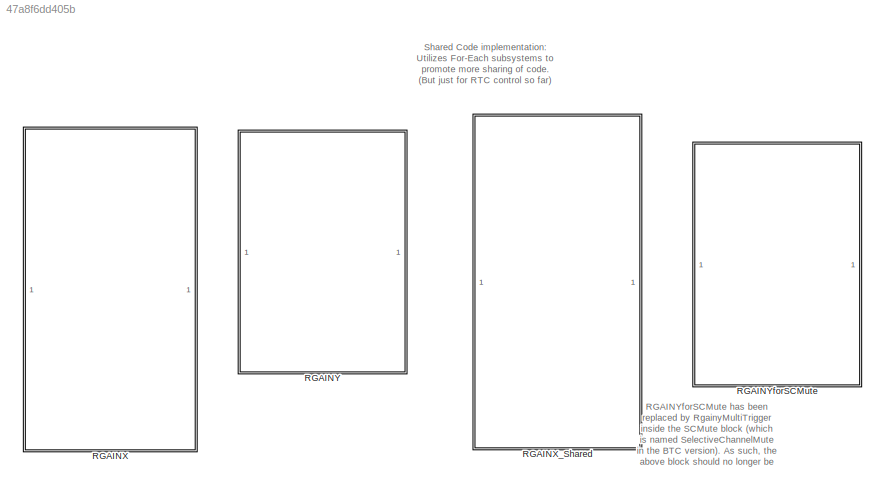
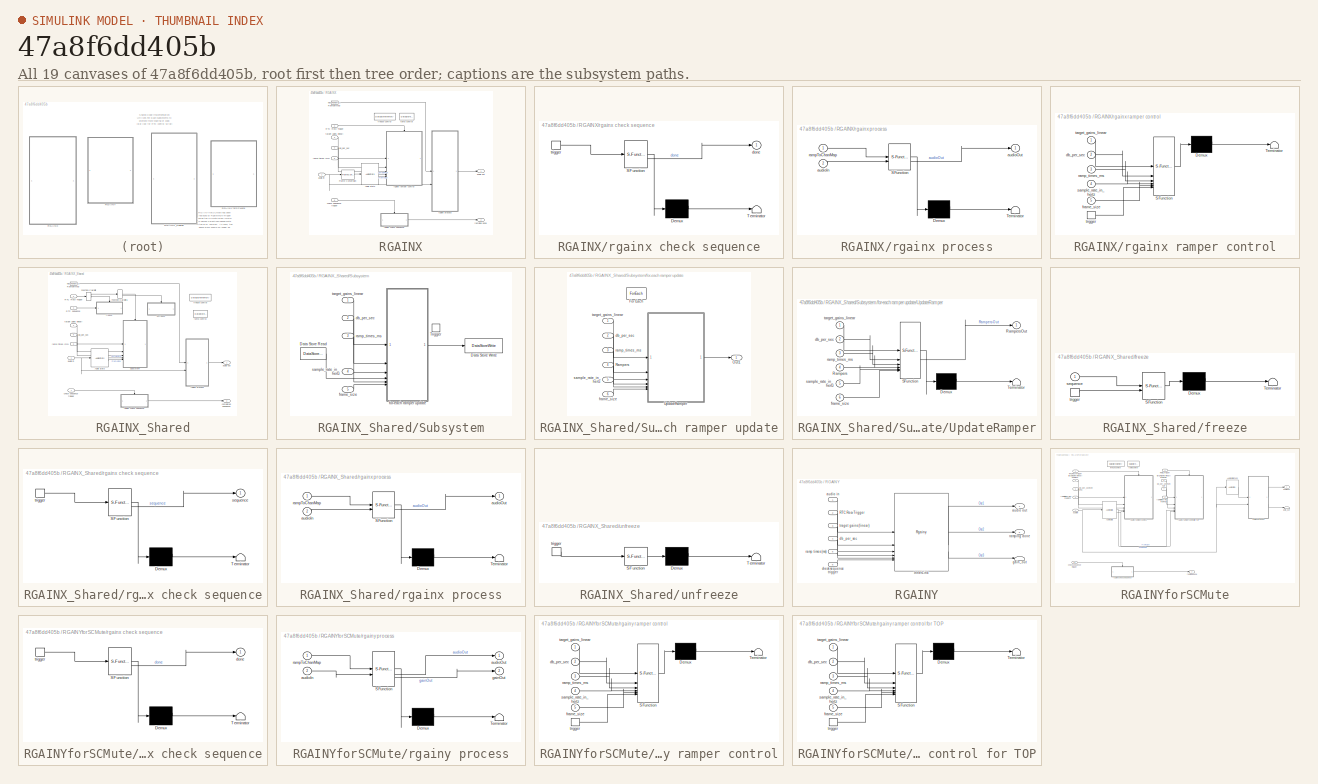
[diagram: thumbnail index - all 19 canvases of the model, root first then tree order]
MODEL slx_47a8f6dd405b
KIND library
CONFIG AbsTol = auto
CONFIG EnableMultiTasking = off
CONFIG FixedStep = auto
CONFIG MaxStep = auto
CONFIG MinStep = auto
CONFIG RelTol = 1e-3
CONFIG SampleTimeConstraint = Unconstrained
CONFIG SolverName = VariableStepAuto
CONFIG StartTime = 0.0
CONFIG StopTime = 10.0
BLOCK [SubSystem] RGAINX
  Commented = on
  InitFcn = GainLibrary_data
BLOCK [Reference] RGAINX/Audio Stats  REF=AudioStats/AudioStats
  SourceBlock = AudioStats/AudioStats
  SourceProductName = Bose Talaria
  SourceType = Talaria Audio Statistics
BLOCK [FrameConversion] RGAINX/Frame Conversion
  OutFrame = Sample-based
BLOCK [Inport] RGAINX/RTC Recv Trigger
  Port = 2
BLOCK [Constant] RGAINX/RamperMap
  Value = MaskRamperMap
BLOCK [Inport] RGAINX/audio in
BLOCK [Outport] RGAINX/audio out
  VectorParamsAs1DForOutWhenUnconnected = off
BLOCK [Inport] RGAINX/check sequence trigger
  Port = 6
BLOCK [Inport] RGAINX/db_per_sec
  Port = 4
BLOCK [DataStoreMemory] RGAINX/freeze control
  DataStoreName = Freeze
  InitialValue = [0,0]
  OutDataTypeStr = uint32
  ShowAdditionalParam = off
  SignalType = real
BLOCK [DataStoreMemory] RGAINX/ramp control
  DataStoreName = Rampers
  InitialValue = MASK_RAMPER_INIT
  OutDataTypeStr = Bus: rgain_bus
  ShowAdditionalParam = off
  SignalType = real
BLOCK [Inport] RGAINX/ramp times (ms)
  Port = 5
BLOCK [Outport] RGAINX/ramping done
  Port = 2
  VectorParamsAs1DForOutWhenUnconnected = off
BLOCK [SubSystem] RGAINX/rgainx check sequence
  ErrorFcn = Stateflow.Translate.translate
  PermitHierarchicalResolution = ExplicitOnly
  SFBlockType = MATLAB Function
  TreatAsAtomicUnit = on
BLOCK [Demux] RGAINX/rgainx check sequence/ Demux 
  Outputs = 1
BLOCK [S-Function] RGAINX/rgainx check sequence/ SFunction 
  EnableBusSupport = off
  FunctionName = sf_sfun
  Parameters = MaskNumRampers
  PortCounts = [1 2]
  SFcnIsStateOwnerBlock = off
  SFunctionDeploymentMode = off
  Tag = Stateflow S-Function 6
BLOCK [Terminator] RGAINX/rgainx check sequence/ Terminator 
BLOCK [Outport] RGAINX/rgainx check sequence/done
  VectorParamsAs1DForOutWhenUnconnected = off
BLOCK [TriggerPort] RGAINX/rgainx check sequence/trigger
  ShowOutputPort = on
  StatesWhenEnabling = held
  TriggerType = function-call
  VariantControl = Variant
BLOCK [SubSystem] RGAINX/rgainx process
  ErrorFcn = Stateflow.Translate.translate
  PermitHierarchicalResolution = ExplicitOnly
  RTWSystemCode = Reusable function
  SFBlockType = MATLAB Function
  TreatAsAtomicUnit = on
BLOCK [Demux] RGAINX/rgainx process/ Demux 
  Outputs = 1
BLOCK [S-Function] RGAINX/rgainx process/ SFunction 
  EnableBusSupport = off
  FunctionName = sf_sfun
  Parameters = MaskNumChannels,MaskNumRampers
  PortCounts = [2 2]
  SFcnIsStateOwnerBlock = off
  SFunctionDeploymentMode = off
  Tag = Stateflow S-Function 7
BLOCK [Terminator] RGAINX/rgainx process/ Terminator 
BLOCK [Inport] RGAINX/rgainx process/audioIn
  Port = 2
BLOCK [Outport] RGAINX/rgainx process/audioOut
  VectorParamsAs1DForOutWhenUnconnected = off
BLOCK [Inport] RGAINX/rgainx process/rampToChanMap
BLOCK [SubSystem] RGAINX/rgainx ramper control
  ErrorFcn = Stateflow.Translate.translate
  PermitHierarchicalResolution = ExplicitOnly
  RTWSystemCode = Reusable function
  SFBlockType = MATLAB Function
  TreatAsAtomicUnit = on
BLOCK [Demux] RGAINX/rgainx ramper control/ Demux 
  Outputs = 1
BLOCK [S-Function] RGAINX/rgainx ramper control/ SFunction 
  EnableBusSupport = off
  FunctionName = sf_sfun
  Parameters = MaskNumRampers,rgain_SILENT_GAIN
  PortCounts = [6 1]
  SFcnIsStateOwnerBlock = off
  SFunctionDeploymentMode = off
  Tag = Stateflow S-Function 9
BLOCK [Terminator] RGAINX/rgainx ramper control/ Terminator 
BLOCK [Inport] RGAINX/rgainx ramper control/db_per_sec
  Port = 2
BLOCK [Inport] RGAINX/rgainx ramper control/frame_size
  Port = 5
BLOCK [Inport] RGAINX/rgainx ramper control/ramp_times_ms
  Port = 3
BLOCK [Inport] RGAINX/rgainx ramper control/sample_rate_in_hertz
  Port = 4
BLOCK [Inport] RGAINX/rgainx ramper control/target_gains_linear
BLOCK [TriggerPort] RGAINX/rgainx ramper control/trigger
  ShowOutputPort = on
  StatesWhenEnabling = held
  TriggerType = function-call
  VariantControl = Variant
BLOCK [Inport] RGAINX/target gains (linear)
  Port = 3
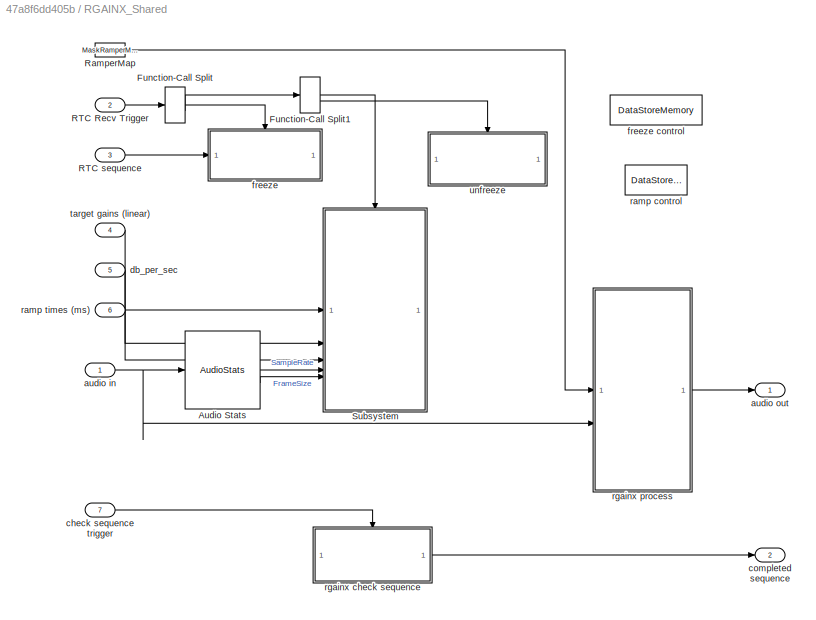
BLOCK [SubSystem] RGAINX_Shared
  Commented = on
  InitFcn = GainLibrary_data
BLOCK [Reference] RGAINX_Shared/Audio Stats  REF=AudioStats/AudioStats
  SourceBlock = AudioStats/AudioStats
  SourceProductName = Bose Talaria
  SourceType = Talaria Audio Statistics
BLOCK [FunctionCallSplit] RGAINX_Shared/Function-Call Split
  IconShape = distinctive
  NumOutputPorts = 2
BLOCK [FunctionCallSplit] RGAINX_Shared/Function-Call Split1
  IconShape = distinctive
  NumOutputPorts = 2
BLOCK [Inport] RGAINX_Shared/RTC Recv Trigger
  Port = 2
BLOCK [Inport] RGAINX_Shared/RTC sequence
  Port = 3
BLOCK [Constant] RGAINX_Shared/RamperMap
  Value = MaskRamperMap
BLOCK [SubSystem] RGAINX_Shared/Subsystem
BLOCK [DataStoreRead] RGAINX_Shared/Subsystem/Data Store Read
  DataStoreName = Rampers
  IndexOptions = Index vector (dialog)
  Indices = 1
  OutputSizes = 1
BLOCK [DataStoreWrite] RGAINX_Shared/Subsystem/Data Store Write
  DataStoreName = Rampers
  IndexOptions = Index vector (dialog)
  Indices = 1
  OutputSizes = 1
BLOCK [TriggerPort] RGAINX_Shared/Subsystem/Trigger
  PortDimensions = 1
  StatesWhenEnabling = held
  TriggerType = function-call
  VariantControl = Variant
BLOCK [Inport] RGAINX_Shared/Subsystem/db_per_sec
  Port = 2
BLOCK [SubSystem] RGAINX_Shared/Subsystem/for-each ramper update
BLOCK [ForEach] RGAINX_Shared/Subsystem/for-each ramper update/For Each
  DisableCoverage = on
BLOCK [Outport] RGAINX_Shared/Subsystem/for-each ramper update/Out1
  ConcatenationDimension = 1
  VectorParamsAs1DForOutWhenUnconnected = off
BLOCK [Inport] RGAINX_Shared/Subsystem/for-each ramper update/Rampers
  Partition = on
  PartitionDimension = 1
  PartitionOffset = 0
  PartitionWidth = 1
  Port = 4
BLOCK [SubSystem] RGAINX_Shared/Subsystem/for-each ramper update/UpdateRamper
  ErrorFcn = Stateflow.Translate.translate
  PermitHierarchicalResolution = ExplicitOnly
  RTWSystemCode = Reusable function
  SFBlockType = MATLAB Function
  TreatAsAtomicUnit = on
BLOCK [Demux] RGAINX_Shared/Subsystem/for-each ramper update/UpdateRamper/ Demux 
  Outputs = 1
BLOCK [S-Function] RGAINX_Shared/Subsystem/for-each ramper update/UpdateRamper/ SFunction 
  EnableBusSupport = off
  FunctionName = sf_sfun
  Parameters = rgain_SILENT_GAIN
  PortCounts = [6 2]
  SFcnIsStateOwnerBlock = off
  SFunctionDeploymentMode = off
  Tag = Stateflow S-Function 4
BLOCK [Terminator] RGAINX_Shared/Subsystem/for-each ramper update/UpdateRamper/ Terminator 
BLOCK [Inport] RGAINX_Shared/Subsystem/for-each ramper update/UpdateRamper/Rampers
  Port = 4
BLOCK [Outport] RGAINX_Shared/Subsystem/for-each ramper update/UpdateRamper/RampersOut
  VectorParamsAs1DForOutWhenUnconnected = off
BLOCK [Inport] RGAINX_Shared/Subsystem/for-each ramper update/UpdateRamper/db_per_sec
  Port = 2
BLOCK [Inport] RGAINX_Shared/Subsystem/for-each ramper update/UpdateRamper/frame_size
  Port = 6
BLOCK [Inport] RGAINX_Shared/Subsystem/for-each ramper update/UpdateRamper/ramp_times_ms
  Port = 3
BLOCK [Inport] RGAINX_Shared/Subsystem/for-each ramper update/UpdateRamper/sample_rate_in_hertz
  Port = 5
BLOCK [Inport] RGAINX_Shared/Subsystem/for-each ramper update/UpdateRamper/target_gains_linear
BLOCK [Inport] RGAINX_Shared/Subsystem/for-each ramper update/db_per_sec
  Port = 2
BLOCK [Inport] RGAINX_Shared/Subsystem/for-each ramper update/frame_size
  Port = 6
BLOCK [Inport] RGAINX_Shared/Subsystem/for-each ramper update/ramp_times_ms
  Partition = on
  PartitionDimension = 1
  PartitionOffset = 0
  PartitionWidth = 1
  Port = 3
BLOCK [Inport] RGAINX_Shared/Subsystem/for-each ramper update/sample_rate_in_hertz
  Port = 5
BLOCK [Inport] RGAINX_Shared/Subsystem/for-each ramper update/target_gains_linear
  Partition = on
  PartitionDimension = 1
  PartitionOffset = 0
  PartitionWidth = 1
BLOCK [Inport] RGAINX_Shared/Subsystem/frame_size
  Port = 5
BLOCK [Inport] RGAINX_Shared/Subsystem/ramp_times_ms
  Port = 3
BLOCK [Inport] RGAINX_Shared/Subsystem/sample_rate_in_hertz
  Port = 4
BLOCK [Inport] RGAINX_Shared/Subsystem/target_gains_linear
BLOCK [Inport] RGAINX_Shared/audio in
BLOCK [Outport] RGAINX_Shared/audio out
  VectorParamsAs1DForOutWhenUnconnected = off
BLOCK [Inport] RGAINX_Shared/check sequence trigger
  Port = 7
BLOCK [Outport] RGAINX_Shared/completed sequence
  Port = 2
  VectorParamsAs1DForOutWhenUnconnected = off
BLOCK [Inport] RGAINX_Shared/db_per_sec
  Port = 5
BLOCK [SubSystem] RGAINX_Shared/freeze
  ErrorFcn = Stateflow.Translate.translate
  PermitHierarchicalResolution = ExplicitOnly
  SFBlockType = MATLAB Function
  TreatAsAtomicUnit = on
BLOCK [DataStoreMemory] RGAINX_Shared/freeze control
  DataStoreName = FreezeSequence
  InitialValue = [0,0]
  OutDataTypeStr = uint32
  ShowAdditionalParam = off
  SignalType = real
BLOCK [Demux] RGAINX_Shared/freeze/ Demux 
  Outputs = 1
BLOCK [S-Function] RGAINX_Shared/freeze/ SFunction 
  EnableBusSupport = off
  FunctionName = sf_sfun
  PortCounts = [2 1]
  SFcnIsStateOwnerBlock = off
  SFunctionDeploymentMode = off
  Tag = Stateflow S-Function 5
BLOCK [Terminator] RGAINX_Shared/freeze/ Terminator 
BLOCK [Inport] RGAINX_Shared/freeze/sequence
BLOCK [TriggerPort] RGAINX_Shared/freeze/trigger
  ShowOutputPort = on
  StatesWhenEnabling = held
  TriggerType = function-call
  VariantControl = Variant
BLOCK [DataStoreMemory] RGAINX_Shared/ramp control
  DataStoreName = Rampers
  InitialValue = MASK_RAMPER_INIT
  OutDataTypeStr = Bus: rgain_bus
  ShowAdditionalParam = off
  SignalType = real
BLOCK [Inport] RGAINX_Shared/ramp times (ms)
  Port = 6
BLOCK [SubSystem] RGAINX_Shared/rgainx check sequence
  ErrorFcn = Stateflow.Translate.translate
  PermitHierarchicalResolution = ExplicitOnly
  SFBlockType = MATLAB Function
  TreatAsAtomicUnit = on
BLOCK [Demux] RGAINX_Shared/rgainx check sequence/ Demux 
  Outputs = 1
BLOCK [S-Function] RGAINX_Shared/rgainx check sequence/ SFunction 
  EnableBusSupport = off
  FunctionName = sf_sfun
  Parameters = MaskNumRampers
  PortCounts = [1 2]
  SFcnIsStateOwnerBlock = off
  SFunctionDeploymentMode = off
  Tag = Stateflow S-Function 8
BLOCK [Terminator] RGAINX_Shared/rgainx check sequence/ Terminator 
BLOCK [Outport] RGAINX_Shared/rgainx check sequence/sequence
  VectorParamsAs1DForOutWhenUnconnected = off
BLOCK [TriggerPort] RGAINX_Shared/rgainx check sequence/trigger
  ShowOutputPort = on
  StatesWhenEnabling = held
  TriggerType = function-call
  VariantControl = Variant
BLOCK [SubSystem] RGAINX_Shared/rgainx process
  ErrorFcn = Stateflow.Translate.translate
  PermitHierarchicalResolution = ExplicitOnly
  RTWSystemCode = Reusable function
  SFBlockType = MATLAB Function
  TreatAsAtomicUnit = on
BLOCK [Demux] RGAINX_Shared/rgainx process/ Demux 
  Outputs = 1
BLOCK [S-Function] RGAINX_Shared/rgainx process/ SFunction 
  EnableBusSupport = off
  FunctionName = sf_sfun
  Parameters = MaskNumChannels,MaskNumRampers
  PortCounts = [2 2]
  SFcnIsStateOwnerBlock = off
  SFunctionDeploymentMode = off
  Tag = Stateflow S-Function 11
BLOCK [Terminator] RGAINX_Shared/rgainx process/ Terminator 
BLOCK [Inport] RGAINX_Shared/rgainx process/audioIn
  Port = 2
BLOCK [Outport] RGAINX_Shared/rgainx process/audioOut
  VectorParamsAs1DForOutWhenUnconnected = off
BLOCK [Inport] RGAINX_Shared/rgainx process/rampToChanMap
BLOCK [Inport] RGAINX_Shared/target gains (linear)
  Port = 4
BLOCK [SubSystem] RGAINX_Shared/unfreeze
  ErrorFcn = Stateflow.Translate.translate
  PermitHierarchicalResolution = ExplicitOnly
  SFBlockType = MATLAB Function
  TreatAsAtomicUnit = on
BLOCK [Demux] RGAINX_Shared/unfreeze/ Demux 
  Outputs = 1
BLOCK [S-Function] RGAINX_Shared/unfreeze/ SFunction 
  EnableBusSupport = off
  FunctionName = sf_sfun
  PortCounts = [1 1]
  SFcnIsStateOwnerBlock = off
  SFunctionDeploymentMode = off
  Tag = Stateflow S-Function 12
BLOCK [Terminator] RGAINX_Shared/unfreeze/ Terminator 
BLOCK [TriggerPort] RGAINX_Shared/unfreeze/trigger
  ShowOutputPort = on
  StatesWhenEnabling = held
  TriggerType = function-call
  VariantControl = Variant
BLOCK [SubSystem] RGAINY
BLOCK [Reference] RGAINY/InnerLink  REF=RgainyBtc/Rgainy
  SourceBlock = RgainyBtc/Rgainy
  SourceType = Blocklib Rgainy
BLOCK [Inport] RGAINY/RTC Recv Trigger
  Port = 2
BLOCK [Inport] RGAINY/audio in
BLOCK [Outport] RGAINY/audio out
BLOCK [Inport] RGAINY/check sequence trigger
  Port = 6
BLOCK [Inport] RGAINY/db_per_sec
  Port = 4
BLOCK [Terminator] RGAINY/gain_out
BLOCK [Inport] RGAINY/ramp times (ms)
  Port = 5
BLOCK [Outport] RGAINY/ramping done
  Port = 2
BLOCK [Inport] RGAINY/traget gains (linear)
  Port = 3
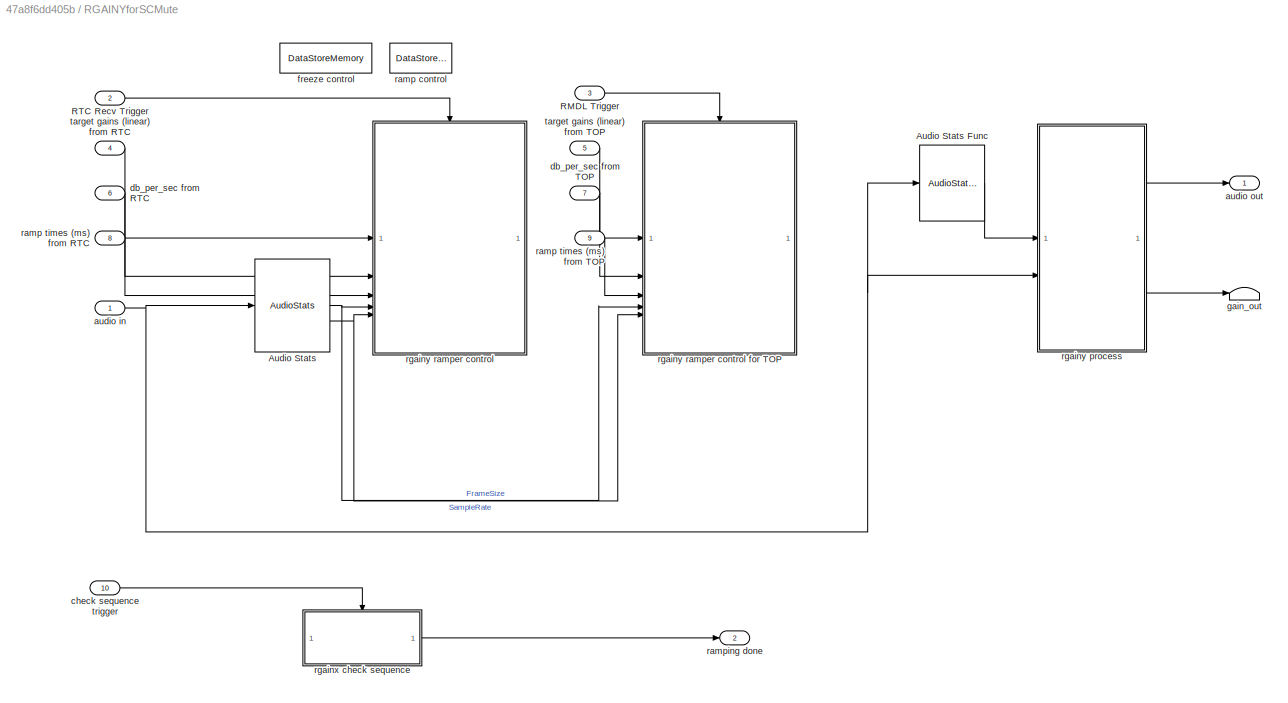
BLOCK [SubSystem] RGAINYforSCMute
  Commented = on
  InitFcn = GainLibrary_data\nRgainName = "Rgainy";
BLOCK [Reference] RGAINYforSCMute/Audio Stats  REF=AudioStats/AudioStats
  SourceBlock = AudioStats/AudioStats
  SourceProductName = Bose Talaria
  SourceType = Talaria Audio Statistics
BLOCK [Reference] RGAINYforSCMute/Audio Stats Func  REF=AudioStats/AudioStatsFunc
  SourceBlock = AudioStats/AudioStatsFunc
  SourceProductName = Bose Talaria
  SourceType = Talaria Audio Statistics Function
BLOCK [Inport] RGAINYforSCMute/RMDL Trigger
  Port = 3
BLOCK [Inport] RGAINYforSCMute/RTC Recv Trigger
  Port = 2
BLOCK [Inport] RGAINYforSCMute/audio in
BLOCK [Outport] RGAINYforSCMute/audio out
  VectorParamsAs1DForOutWhenUnconnected = off
BLOCK [Inport] RGAINYforSCMute/check sequence trigger
  Port = 10
BLOCK [Inport] RGAINYforSCMute/db_per_sec from RTC
  Port = 6
BLOCK [Inport] RGAINYforSCMute/db_per_sec from TOP
  Port = 7
BLOCK [DataStoreMemory] RGAINYforSCMute/freeze control
  DataStoreName = Freeze
  InitialValue = [0,0]
  OutDataTypeStr = uint32
  ShowAdditionalParam = off
  SignalType = real
BLOCK [Terminator] RGAINYforSCMute/gain_out
BLOCK [DataStoreMemory] RGAINYforSCMute/ramp control
  DataStoreName = Rampers
  InitialValue = MASK_RAMPER_INIT
  OutDataTypeStr = Bus: rgain_bus
  ShowAdditionalParam = off
  SignalType = real
BLOCK [Inport] RGAINYforSCMute/ramp times (ms) from RTC
  Port = 8
BLOCK [Inport] RGAINYforSCMute/ramp times (ms) from TOP
  Port = 9
BLOCK [Outport] RGAINYforSCMute/ramping done
  Port = 2
  VectorParamsAs1DForOutWhenUnconnected = off
BLOCK [SubSystem] RGAINYforSCMute/rgainx check sequence
  ErrorFcn = Stateflow.Translate.translate
  PermitHierarchicalResolution = ExplicitOnly
  SFBlockType = MATLAB Function
  TreatAsAtomicUnit = on
BLOCK [Demux] RGAINYforSCMute/rgainx check sequence/ Demux 
  Outputs = 1
BLOCK [S-Function] RGAINYforSCMute/rgainx check sequence/ SFunction 
  EnableBusSupport = off
  FunctionName = sf_sfun
  Parameters = MaskNumRampers
  PortCounts = [1 2]
  SFcnIsStateOwnerBlock = off
  SFunctionDeploymentMode = off
  Tag = Stateflow S-Function 10
BLOCK [Terminator] RGAINYforSCMute/rgainx check sequence/ Terminator 
BLOCK [Outport] RGAINYforSCMute/rgainx check sequence/done
  VectorParamsAs1DForOutWhenUnconnected = off
BLOCK [TriggerPort] RGAINYforSCMute/rgainx check sequence/trigger
  ShowOutputPort = on
  StatesWhenEnabling = held
  TriggerType = function-call
  VariantControl = Variant
BLOCK [SubSystem] RGAINYforSCMute/rgainy process
  ErrorFcn = Stateflow.Translate.translate
  PermitHierarchicalResolution = ExplicitOnly
  RTWSystemCode = Reusable function
  SFBlockType = MATLAB Function
  TreatAsAtomicUnit = on
BLOCK [Demux] RGAINYforSCMute/rgainy process/ Demux 
  Outputs = 1
BLOCK [S-Function] RGAINYforSCMute/rgainy process/ SFunction 
  EnableBusSupport = off
  FunctionName = sf_sfun
  Parameters = MaskNumRampers
  PortCounts = [2 3]
  SFcnIsStateOwnerBlock = off
  SFunctionDeploymentMode = off
  Tag = Stateflow S-Function 13
BLOCK [Terminator] RGAINYforSCMute/rgainy process/ Terminator 
BLOCK [Inport] RGAINYforSCMute/rgainy process/audioIn
  Port = 2
BLOCK [Outport] RGAINYforSCMute/rgainy process/audioOut
  VectorParamsAs1DForOutWhenUnconnected = off
BLOCK [Outport] RGAINYforSCMute/rgainy process/gainOut
  Port = 2
  VectorParamsAs1DForOutWhenUnconnected = off
BLOCK [Inport] RGAINYforSCMute/rgainy process/rampToChanMap
BLOCK [SubSystem] RGAINYforSCMute/rgainy ramper control
  ErrorFcn = Stateflow.Translate.translate
  PermitHierarchicalResolution = ExplicitOnly
  RTWSystemCode = Reusable function
  SFBlockType = MATLAB Function
  TreatAsAtomicUnit = on
BLOCK [SubSystem] RGAINYforSCMute/rgainy ramper control for TOP
  ErrorFcn = Stateflow.Translate.translate
  PermitHierarchicalResolution = ExplicitOnly
  RTWSystemCode = Reusable function
  SFBlockType = MATLAB Function
  TreatAsAtomicUnit = on
BLOCK [Demux] RGAINYforSCMute/rgainy ramper control for TOP/ Demux 
  Outputs = 1
BLOCK [S-Function] RGAINYforSCMute/rgainy ramper control for TOP/ SFunction 
  EnableBusSupport = off
  FunctionName = sf_sfun
  Parameters = MaskNumRampers,rgain_SILENT_GAIN
  PortCounts = [6 1]
  SFcnIsStateOwnerBlock = off
  SFunctionDeploymentMode = off
  Tag = Stateflow S-Function 15
BLOCK [Terminator] RGAINYforSCMute/rgainy ramper control for TOP/ Terminator 
BLOCK [Inport] RGAINYforSCMute/rgainy ramper control for TOP/db_per_sec
  Port = 2
BLOCK [Inport] RGAINYforSCMute/rgainy ramper control for TOP/frame_size
  Port = 5
BLOCK [Inport] RGAINYforSCMute/rgainy ramper control for TOP/ramp_times_ms
  Port = 3
BLOCK [Inport] RGAINYforSCMute/rgainy ramper control for TOP/sample_rate_in_hertz
  Port = 4
BLOCK [Inport] RGAINYforSCMute/rgainy ramper control for TOP/target_gains_linear
BLOCK [TriggerPort] RGAINYforSCMute/rgainy ramper control for TOP/trigger
  ShowOutputPort = on
  StatesWhenEnabling = held
  TriggerType = function-call
  VariantControl = Variant
BLOCK [Demux] RGAINYforSCMute/rgainy ramper control/ Demux 
  Outputs = 1
BLOCK [S-Function] RGAINYforSCMute/rgainy ramper control/ SFunction 
  EnableBusSupport = off
  FunctionName = sf_sfun
  Parameters = MaskNumRampers,rgain_SILENT_GAIN
  PortCounts = [6 1]
  SFcnIsStateOwnerBlock = off
  SFunctionDeploymentMode = off
  Tag = Stateflow S-Function 14
BLOCK [Terminator] RGAINYforSCMute/rgainy ramper control/ Terminator 
BLOCK [Inport] RGAINYforSCMute/rgainy ramper control/db_per_sec
  Port = 2
BLOCK [Inport] RGAINYforSCMute/rgainy ramper control/frame_size
  Port = 5
BLOCK [Inport] RGAINYforSCMute/rgainy ramper control/ramp_times_ms
  Port = 3
BLOCK [Inport] RGAINYforSCMute/rgainy ramper control/sample_rate_in_hertz
  Port = 4
BLOCK [Inport] RGAINYforSCMute/rgainy ramper control/target_gains_linear
BLOCK [TriggerPort] RGAINYforSCMute/rgainy ramper control/trigger
  ShowOutputPort = on
  StatesWhenEnabling = held
  TriggerType = function-call
  VariantControl = Variant
BLOCK [Inport] RGAINYforSCMute/target gains (linear) from RTC
  Port = 4
BLOCK [Inport] RGAINYforSCMute/target gains (linear) from TOP
  Port = 5
ANNOTATION (root): RGAINYforSCMute has been replaced by RgainyMultiTrigger inside the SCMute block (which is named SelectiveChannelMute in the BTC version). As such, the above block should no longer be used anywhere probably?
ANNOTATION (root): Shared Code implementation: Utilizes For-Each subsystems to promote more sharing of code. (But just for RTC control so far)
CHART RGAINX/rgainx ramper control states=1 transitions=1
  STATE_LABEL 'eML_blk_kernel()'
  STATE_LABEL 'SCRIPT:\nfunction control(...\n     target_gains_linear, db_per_sec, ramp_times_ms, sample_rate_in_hertz, frame_size, rgain_SILENT_GAIN, MaskNumRampers)\n%#codegen\n\nglobal Freeze;\nglobal Rampers;\n\n% Step 1: FREEZE the gain ramper so that we can perform calculations based\n% on the current gain value.\nFreeze(1) = uint32(1); % freeze the gain\nfor ramper=1:MaskNumRampers\n\n    % Step 2: Nudge the gain val...<+2569ch>'
CHART RGAINYforSCMute/rgainx check sequence states=1 transitions=1
  STATE_LABEL 'eML_blk_kernel()'
  STATE_LABEL 'SCRIPT:\nfunction done = GetCompletedSequence(MaskNumRampers)\n% Check if the ramping is done by comparing the target and current gains.\n\nglobal Rampers;\n\n% Assume the work is complete until proven otherwise\ndone = true;\nfor i=1:MaskNumRampers\n   if (Rampers(i).targetGain ~= Rampers(i).currentGain)\n       done = false; % just proved otherwise\n       break;\n   end\nend'
CHART RGAINX_Shared/rgainx process states=1 transitions=1
  STATE_LABEL 'eML_blk_kernel()'
  STATE_LABEL 'SCRIPT:\nfunction audioOut  = rgainx(rampToChanMap, audioIn, MaskNumRampers, MaskNumChannels)\n%#codegen\n\nglobal Rampers;\nglobal FreezeSequence;\n\n% figure out the frame size\n[frame_size, channel_count] = size(audioIn);\n\n% set the size of the output buffer\naudioOut = coder.nullcopy(audioIn);\n\n% Channel indexes start in the map just after the ramper channel counts.\n% Create an iterator to walk the cha...<+1519ch>'
CHART RGAINX_Shared/unfreeze states=1 transitions=1
  STATE_LABEL 'eML_blk_kernel()'
  STATE_LABEL 'SCRIPT:\nfunction unfreeze()\n\n% Unfreeze the rampers \n% Data Store Memories\nglobal FreezeSequence;\n\nFreezeSequence(1) = FreezeSequence(1) - uint32(1);\n\ndisp(FreezeSequence(1));\n'
CHART RGAINYforSCMute/rgainy process states=1 transitions=1
  STATE_LABEL 'eML_blk_kernel()'
  STATE_LABEL 'SCRIPT:\nfunction [audioOut, gainOut]  = rgainx(rampToChanMap, audioIn, MaskNumRampers)\n%#codegen\n\nglobal Rampers;\nglobal Freeze;\n\n% set the size of the output buffer\naudioOut = coder.nullcopy(audioIn);\n\n[frame_size,channel_count] = size(audioIn);\ngainOut = single(ones(1,channel_count));\n\n% Channel indexes start in the map just after the ramper channel counts.\n% Create an iterator to walk the chann...<+1647ch>'
CHART RGAINYforSCMute/rgainy ramper control states=1 transitions=1
  STATE_LABEL 'eML_blk_kernel()'
  STATE_LABEL 'SCRIPT:\nfunction control(...\n     target_gains_linear, db_per_sec, ramp_times_ms, sample_rate_in_hertz, ...\n     frame_size, rgain_SILENT_GAIN, MaskNumRampers)\n%#codegen\n\n% Dimensions of target_gains_linear must match the number of rampers. \n%\n% db_per_sec takes precidence:\n% If db_per_sec has a non-zero value then any ramp_times_ms values are\n% ignored and the db_per_sec is used to determine ramp...<+3608ch>'
CHART RGAINYforSCMute/rgainy ramper control for TOP states=1 transitions=1
  STATE_LABEL 'eML_blk_kernel()'
  STATE_LABEL 'SCRIPT:\nfunction control(...\n     target_gains_linear, db_per_sec, ramp_times_ms, sample_rate_in_hertz, ...\n     frame_size, rgain_SILENT_GAIN, MaskNumRampers)\n%#codegen\n\n% Dimensions of target_gains_linear must match the number of rampers. \n%\n% db_per_sec takes precidence:\n% If db_per_sec has a non-zero value then any ramp_times_ms values are\n% ignored and the db_per_sec is used to determine ramp...<+3608ch>'
CHART RGAINX_Shared/Subsystem/for-each ramper update/UpdateRamper states=1 transitions=1
  STATE_LABEL 'eML_blk_kernel()'
  STATE_LABEL 'SCRIPT:\nfunction RampersOut  = control(...\n     target_gains_linear, db_per_sec, ramp_times_ms, Rampers, sample_rate_in_hertz, frame_size, rgain_SILENT_GAIN)\n%#codegen\n\n\n    % Step 2: Nudge the gain values a bit if they are sitting at zero.\n    % When this control set goes live, ensure that the current gain will move.\n    % If current gain is zero, replace with a value very close to zero. What we\n...<+2202ch>'
CHART RGAINX_Shared/freeze states=1 transitions=1
  STATE_LABEL 'eML_blk_kernel()'
  STATE_LABEL 'SCRIPT:\nfunction freeze(sequence)\n\n% Data Store Memories\nglobal FreezeSequence;\n\n% Step 1: FREEZE the gain ramper so that we can perform calculations based\n% on the current gain value. Also, record the control sequence number used\n% to specify this soon-to-be-calculated target state.\nFreezeSequence(1) = uint32(1); % freeze the gain\nFreezeSequence(2) = uint32(sequence); % and remember the control s...<+9ch>'
CHART RGAINX/rgainx check sequence states=1 transitions=1
  STATE_LABEL 'eML_blk_kernel()'
  STATE_LABEL 'SCRIPT:\nfunction done = GetCompletedSequence(MaskNumRampers)\n% Check if the ramping is done by comparing the target and current gains.\n\nglobal Rampers;\n\n% Assume the work is complete until proven otherwise\ndone = true;\nfor i=1:MaskNumRampers\n   if (Rampers(i).targetGain ~= Rampers(i).currentGain)\n       done = false; % just proved otherwise\n       break;\n   end\nend'
CHART RGAINX/rgainx process states=1 transitions=1
  STATE_LABEL 'eML_blk_kernel()'
  STATE_LABEL 'SCRIPT:\nfunction audioOut  = rgainx(rampToChanMap, audioIn, MaskNumRampers, MaskNumChannels)\n%#codegen\n\nglobal Rampers;\nglobal Freeze;\n\n% figure out the frame size\n[frame_size, channel_count] = size(audioIn);\n\n% set the size of the output buffer\naudioOut = coder.nullcopy(audioIn);\n\n% Channel indexes start in the map just after the ramper channel counts.\n% Create an iterator to walk the channel ind...<+1503ch>'
CHART RGAINX_Shared/rgainx check sequence states=1 transitions=1
  STATE_LABEL 'eML_blk_kernel()'
  STATE_LABEL 'SCRIPT:\nfunction sequence = GetCompletedSequence(MaskNumRampers)\n% Check if the ramping is done by comparing the target and current gains.\n\nglobal Rampers;\nglobal FreezeSequence;\n\n% Assume the sequence is complete until proven otherwise\ntempSequence = FreezeSequence(2);\nfor i=1:MaskNumRampers\n   if (Rampers(i).targetGain ~= Rampers(i).currentGain)\n       tempSequence = uint32(0); % just proved oth...<+56ch>'
CHART  states=0 transitions=0
CHART  states=0 transitions=0
CHART  states=0 transitions=0
CHART  states=0 transitions=0
CHART  states=0 transitions=0
CHART  states=0 transitions=0
CHART  states=0 transitions=0
CHART  states=0 transitions=0
CHART  states=0 transitions=0
CHART  states=0 transitions=0
CHART  states=0 transitions=0
CHART  states=0 transitions=0
